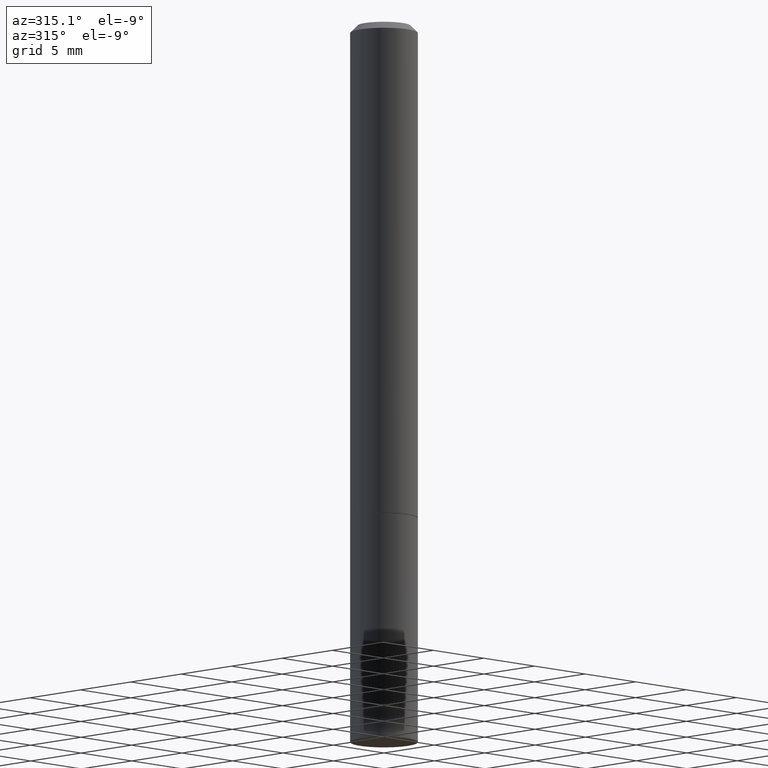
[diagram: clean part render]
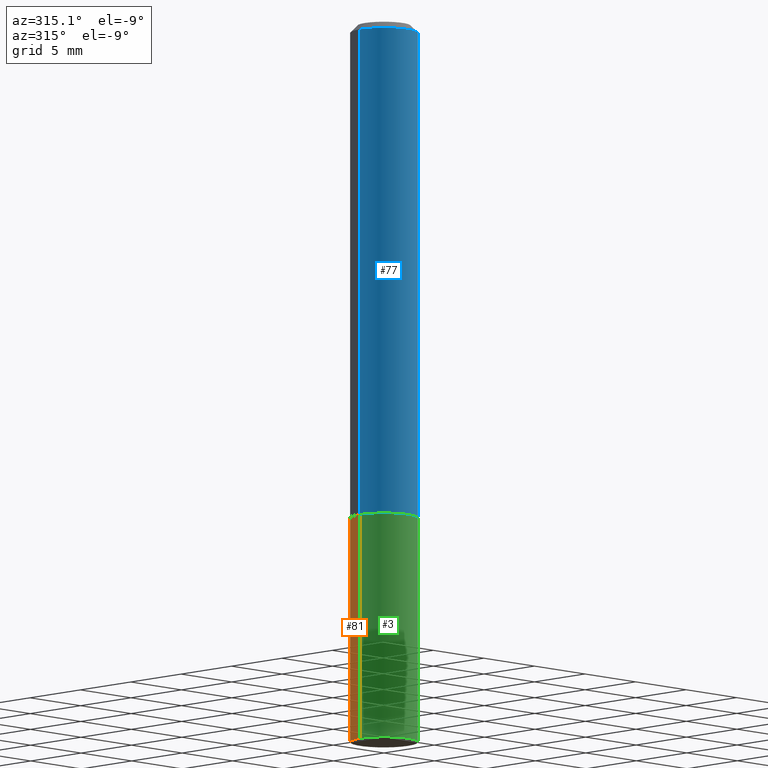
[diagram: same view with three faces highlighted in distinct colors, each labeled with its STEP entity id]
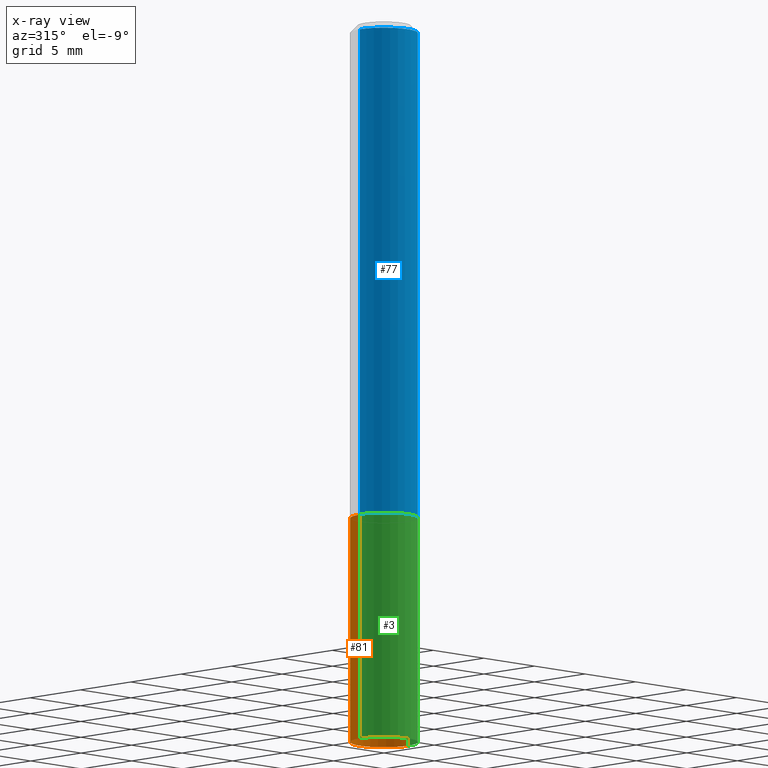
[diagram: x-ray of the same camera — body ghosted, the three highlighted faces saturated]
A machine part, auxiliary view with three faces highlighted in distinct colors.
The next image is the same camera in x-ray (body ghosted, the three faces saturated) — at least one of them is partly hidden behind the body in this view.
Their STEP definitions:

[orange] entity #81 — the highlighted cylindrical surface (edge-blend (fillet) strip) has radius 2.3813 mm, axis along (-0, 0, 1).
#5 = CARTESIAN_POINT ( 'NONE',  ( -0.09374999999999984734, -6.328309926653205239E-15, -2.000000000000000000 ) ) ;
#10 = DIRECTION ( 'NONE',  ( 1.000000000000000000, -6.982962677686261189E-15, 0.000000000000000000 ) ) ;
#12 = EDGE_CURVE ( 'NONE', #236, #191, #89, .T. ) ;
#22 = EDGE_CURVE ( 'NONE', #236, #381, #321, .T. ) ;
#26 = CARTESIAN_POINT ( 'NONE',  ( -0.09375000000000001388, 6.661338147750940229E-16, -4.611501647113973995E-30 ) ) ;
#46 = DIRECTION ( 'NONE',  ( -2.445468806185136597E-29, 3.491481338843145583E-15, 1.000000000000000000 ) ) ;
#50 = ORIENTED_EDGE ( 'NONE', *, *, #12, .T. ) ;
#59 = EDGE_CURVE ( 'NONE', #191, #345, #62, .T. ) ;
#62 = LINE ( 'NONE', #26, #253 ) ;
#81 = ADVANCED_FACE ( 'NONE', ( #344 ), #221, .T. ) ;
#89 = CIRCLE ( 'NONE', #220, 0.09375000000000001388 ) ;
#95 = AXIS2_PLACEMENT_3D ( 'NONE', #301, #46, #10 ) ;
#96 = CARTESIAN_POINT ( 'NONE',  ( 0.09374999999999984734, -7.626134364977371460E-15, -2.000000000000000000 ) ) ;
#108 = ORIENTED_EDGE ( 'NONE', *, *, #59, .T. ) ;
#114 = CARTESIAN_POINT ( 'NONE',  ( 0.09375000000000001388, -6.546527510330875041E-16, 4.571415727308690506E-30 ) ) ;
#126 = DIRECTION ( 'NONE',  ( -2.445468806185136597E-29, 3.491481338843145583E-15, 1.000000000000000000 ) ) ;
#134 = ORIENTED_EDGE ( 'NONE', *, *, #159, .F. ) ;
#138 = DIRECTION ( 'NONE',  ( -2.445468806185136877E-29, 3.491481338843145188E-15, 1.000000000000000000 ) ) ;
#159 = EDGE_CURVE ( 'NONE', #381, #345, #261, .T. ) ;
#165 = DIRECTION ( 'NONE',  ( 1.000000000000000000, -6.982962677686265922E-15, 4.876176775795935793E-29 ) ) ;
#174 = DIRECTION ( 'NONE',  ( -2.445468806185136877E-29, 3.491481338843145188E-15, 1.000000000000000000 ) ) ;
#183 = VECTOR ( 'NONE', #138, 39.37007874015748143 ) ;
#191 = VERTEX_POINT ( 'NONE', #5 ) ;
#220 = AXIS2_PLACEMENT_3D ( 'NONE', #356, #263, #262 ) ;
#221 = CYLINDRICAL_SURFACE ( 'NONE', #328, 0.09375000000000001388 ) ;
#236 = VERTEX_POINT ( 'NONE', #96 ) ;
#253 = VECTOR ( 'NONE', #174, 39.37007874015748143 ) ;
#261 = CIRCLE ( 'NONE', #95, 0.09375000000000001388 ) ;
#262 = DIRECTION ( 'NONE',  ( 1.000000000000000000, -6.982962677686261189E-15, 0.000000000000000000 ) ) ;
#263 = DIRECTION ( 'NONE',  ( -2.445468806185136597E-29, 3.491481338843145583E-15, 1.000000000000000000 ) ) ;
#301 = CARTESIAN_POINT ( 'NONE',  ( 3.362519608504562260E-29, -4.800786840909324930E-15, -1.375000000000000000 ) ) ;
#314 = ORIENTED_EDGE ( 'NONE', *, *, #22, .F. ) ;
#321 = LINE ( 'NONE', #114, #183 ) ;
#328 = AXIS2_PLACEMENT_3D ( 'NONE', #338, #126, #165 ) ;
#335 = CARTESIAN_POINT ( 'NONE',  ( 0.09375000000000001388, -5.455439591942412434E-15, -1.375000000000000000 ) ) ;
#337 = CARTESIAN_POINT ( 'NONE',  ( -0.09375000000000001388, -5.225740944522714123E-15, -1.375000000000000000 ) ) ;
#338 = CARTESIAN_POINT ( 'NONE',  ( 0.000000000000000000, 0.000000000000000000, 0.000000000000000000 ) ) ;
#344 = FACE_OUTER_BOUND ( 'NONE', #388, .T. ) ;
#345 = VERTEX_POINT ( 'NONE', #337 ) ;
#356 = CARTESIAN_POINT ( 'NONE',  ( 4.890937612370273194E-29, -6.982962677686291165E-15, -2.000000000000000000 ) ) ;
#381 = VERTEX_POINT ( 'NONE', #335 ) ;
#388 = EDGE_LOOP ( 'NONE', ( #50, #108, #134, #314 ) ) ;

[blue] entity #77 — the highlighted cylindrical surface (edge-blend (fillet) strip) has radius 2.3812 mm, axis along (-0, 0, 1).
#1 = ORIENTED_EDGE ( 'NONE', *, *, #390, .T. ) ;
#17 = ORIENTED_EDGE ( 'NONE', *, *, #175, .F. ) ;
#35 = AXIS2_PLACEMENT_3D ( 'NONE', #101, #43, #271 ) ;
#43 = DIRECTION ( 'NONE',  ( -2.445468806185136597E-29, 3.491481338843145583E-15, 1.000000000000000000 ) ) ;
#58 = CIRCLE ( 'NONE', #222, 0.09375000000000001388 ) ;
#70 = VERTEX_POINT ( 'NONE', #258 ) ;
#74 = DIRECTION ( 'NONE',  ( 1.000000000000000000, -6.982962677686266711E-15, 4.876176775795935793E-29 ) ) ;
#77 = ADVANCED_FACE ( 'NONE', ( #290 ), #185, .T. ) ;
#86 = VECTOR ( 'NONE', #118, 39.37007874015748143 ) ;
#101 = CARTESIAN_POINT ( 'NONE',  ( 4.890937612370278413E-31, -6.982962677686297772E-17, -0.02000000000000002123 ) ) ;
#111 = VERTEX_POINT ( 'NONE', #375 ) ;
#118 = DIRECTION ( 'NONE',  ( -2.445468806185136877E-29, 3.491481338843145188E-15, 1.000000000000000000 ) ) ;
#122 = LINE ( 'NONE', #240, #162 ) ;
#143 = CIRCLE ( 'NONE', #35, 0.09374999999999984734 ) ;
#162 = VECTOR ( 'NONE', #270, 39.37007874015748143 ) ;
#175 = EDGE_CURVE ( 'NONE', #320, #70, #143, .T. ) ;
#185 = CYLINDRICAL_SURFACE ( 'NONE', #368, 0.09374999999999991673 ) ;
#219 = DIRECTION ( 'NONE',  ( -2.445468806185136597E-29, 3.491481338843145583E-15, 1.000000000000000000 ) ) ;
#222 = AXIS2_PLACEMENT_3D ( 'NONE', #247, #360, #242 ) ;
#228 = ORIENTED_EDGE ( 'NONE', *, *, #323, .F. ) ;
#240 = CARTESIAN_POINT ( 'NONE',  ( 0.09374999999999991673, -6.546527510330869125E-16, 4.571415727308685602E-30 ) ) ;
#242 = DIRECTION ( 'NONE',  ( 1.000000000000000000, -6.982962677686261189E-15, 0.000000000000000000 ) ) ;
#247 = CARTESIAN_POINT ( 'NONE',  ( 3.360074139698377778E-29, -4.797295359570481134E-15, -1.373999999999999888 ) ) ;
#250 = CARTESIAN_POINT ( 'NONE',  ( 0.000000000000000000, 0.000000000000000000, 0.000000000000000000 ) ) ;
#258 = CARTESIAN_POINT ( 'NONE',  ( 0.09374999999999984734, -7.130013140679430017E-16, -0.02000000000000002123 ) ) ;
#260 = EDGE_LOOP ( 'NONE', ( #228, #293, #1, #17 ) ) ;
#264 = LINE ( 'NONE', #300, #86 ) ;
#270 = DIRECTION ( 'NONE',  ( -2.445468806185136877E-29, 3.491481338843145188E-15, 1.000000000000000000 ) ) ;
#271 = DIRECTION ( 'NONE',  ( 1.000000000000000000, -6.982962677686266711E-15, 0.000000000000000000 ) ) ;
#279 = VERTEX_POINT ( 'NONE', #282 ) ;
#282 = CARTESIAN_POINT ( 'NONE',  ( -0.09375000000000001388, -1.767428678398575728E-15, -1.373999999999999888 ) ) ;
#290 = FACE_OUTER_BOUND ( 'NONE', #260, .T. ) ;
#293 = ORIENTED_EDGE ( 'NONE', *, *, #309, .T. ) ;
#298 = CARTESIAN_POINT ( 'NONE',  ( -0.09374999999999984734, 5.848231242562234171E-16, -0.02000000000000002123 ) ) ;
#300 = CARTESIAN_POINT ( 'NONE',  ( -0.09374999999999991673, 6.661338147750933326E-16, -4.611501647113969791E-30 ) ) ;
#309 = EDGE_CURVE ( 'NONE', #279, #111, #58, .T. ) ;
#320 = VERTEX_POINT ( 'NONE', #298 ) ;
#323 = EDGE_CURVE ( 'NONE', #279, #320, #264, .T. ) ;
#360 = DIRECTION ( 'NONE',  ( -2.445468806185136597E-29, 3.491481338843145583E-15, 1.000000000000000000 ) ) ;
#368 = AXIS2_PLACEMENT_3D ( 'NONE', #250, #219, #74 ) ;
#375 = CARTESIAN_POINT ( 'NONE',  ( 0.09375000000000001388, -5.451948110603568638E-15, -1.373999999999999888 ) ) ;
#390 = EDGE_CURVE ( 'NONE', #111, #70, #122, .T. ) ;

[green] entity #3 — the highlighted cylindrical surface (edge-blend (fillet) strip) has radius 2.3813 mm, axis along (-0, 0, 1).
#3 = ADVANCED_FACE ( 'NONE', ( #144 ), #203, .T. ) ;
#5 = CARTESIAN_POINT ( 'NONE',  ( -0.09374999999999984734, -6.328309926653205239E-15, -2.000000000000000000 ) ) ;
#22 = EDGE_CURVE ( 'NONE', #236, #381, #321, .T. ) ;
#26 = CARTESIAN_POINT ( 'NONE',  ( -0.09375000000000001388, 6.661338147750940229E-16, -4.611501647113973995E-30 ) ) ;
#28 = ORIENTED_EDGE ( 'NONE', *, *, #157, .F. ) ;
#41 = CARTESIAN_POINT ( 'NONE',  ( 4.890937612370273194E-29, -6.982962677686291165E-15, -2.000000000000000000 ) ) ;
#54 = ORIENTED_EDGE ( 'NONE', *, *, #59, .F. ) ;
#56 = AXIS2_PLACEMENT_3D ( 'NONE', #333, #373, #181 ) ;
#59 = EDGE_CURVE ( 'NONE', #191, #345, #62, .T. ) ;
#62 = LINE ( 'NONE', #26, #253 ) ;
#66 = DIRECTION ( 'NONE',  ( 1.000000000000000000, -6.982962677686265922E-15, 4.876176775795935793E-29 ) ) ;
#96 = CARTESIAN_POINT ( 'NONE',  ( 0.09374999999999984734, -7.626134364977371460E-15, -2.000000000000000000 ) ) ;
#97 = DIRECTION ( 'NONE',  ( -2.445468806185136597E-29, 3.491481338843145583E-15, 1.000000000000000000 ) ) ;
#106 = EDGE_CURVE ( 'NONE', #191, #236, #383, .T. ) ;
#114 = CARTESIAN_POINT ( 'NONE',  ( 0.09375000000000001388, -6.546527510330875041E-16, 4.571415727308690506E-30 ) ) ;
#138 = DIRECTION ( 'NONE',  ( -2.445468806185136877E-29, 3.491481338843145188E-15, 1.000000000000000000 ) ) ;
#144 = FACE_OUTER_BOUND ( 'NONE', #379, .T. ) ;
#157 = EDGE_CURVE ( 'NONE', #345, #381, #358, .T. ) ;
#174 = DIRECTION ( 'NONE',  ( -2.445468806185136877E-29, 3.491481338843145188E-15, 1.000000000000000000 ) ) ;
#178 = DIRECTION ( 'NONE',  ( -2.445468806185136597E-29, 3.491481338843145583E-15, 1.000000000000000000 ) ) ;
#181 = DIRECTION ( 'NONE',  ( 1.000000000000000000, -6.982962677686261189E-15, 0.000000000000000000 ) ) ;
#183 = VECTOR ( 'NONE', #138, 39.37007874015748143 ) ;
#191 = VERTEX_POINT ( 'NONE', #5 ) ;
#203 = CYLINDRICAL_SURFACE ( 'NONE', #229, 0.09375000000000001388 ) ;
#208 = ORIENTED_EDGE ( 'NONE', *, *, #106, .T. ) ;
#229 = AXIS2_PLACEMENT_3D ( 'NONE', #351, #178, #66 ) ;
#236 = VERTEX_POINT ( 'NONE', #96 ) ;
#253 = VECTOR ( 'NONE', #174, 39.37007874015748143 ) ;
#275 = AXIS2_PLACEMENT_3D ( 'NONE', #41, #97, #303 ) ;
#303 = DIRECTION ( 'NONE',  ( 1.000000000000000000, -6.982962677686261189E-15, 0.000000000000000000 ) ) ;
#308 = ORIENTED_EDGE ( 'NONE', *, *, #22, .T. ) ;
#321 = LINE ( 'NONE', #114, #183 ) ;
#333 = CARTESIAN_POINT ( 'NONE',  ( 3.362519608504562260E-29, -4.800786840909324930E-15, -1.375000000000000000 ) ) ;
#335 = CARTESIAN_POINT ( 'NONE',  ( 0.09375000000000001388, -5.455439591942412434E-15, -1.375000000000000000 ) ) ;
#337 = CARTESIAN_POINT ( 'NONE',  ( -0.09375000000000001388, -5.225740944522714123E-15, -1.375000000000000000 ) ) ;
#345 = VERTEX_POINT ( 'NONE', #337 ) ;
#351 = CARTESIAN_POINT ( 'NONE',  ( 0.000000000000000000, 0.000000000000000000, 0.000000000000000000 ) ) ;
#358 = CIRCLE ( 'NONE', #56, 0.09375000000000001388 ) ;
#373 = DIRECTION ( 'NONE',  ( -2.445468806185136597E-29, 3.491481338843145583E-15, 1.000000000000000000 ) ) ;
#379 = EDGE_LOOP ( 'NONE', ( #54, #208, #308, #28 ) ) ;
#381 = VERTEX_POINT ( 'NONE', #335 ) ;
#383 = CIRCLE ( 'NONE', #275, 0.09375000000000001388 ) ;